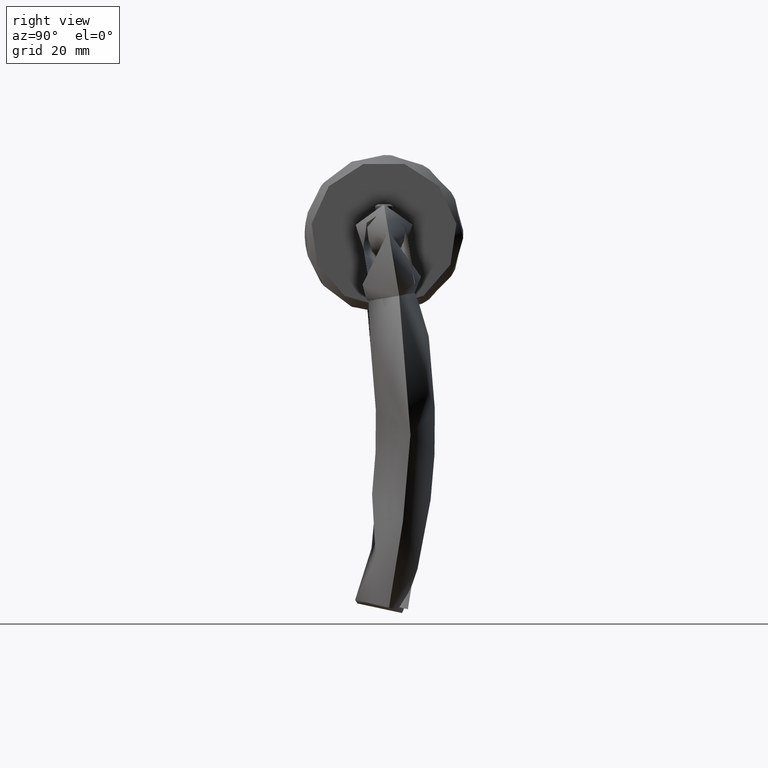
[diagram: clean part render]
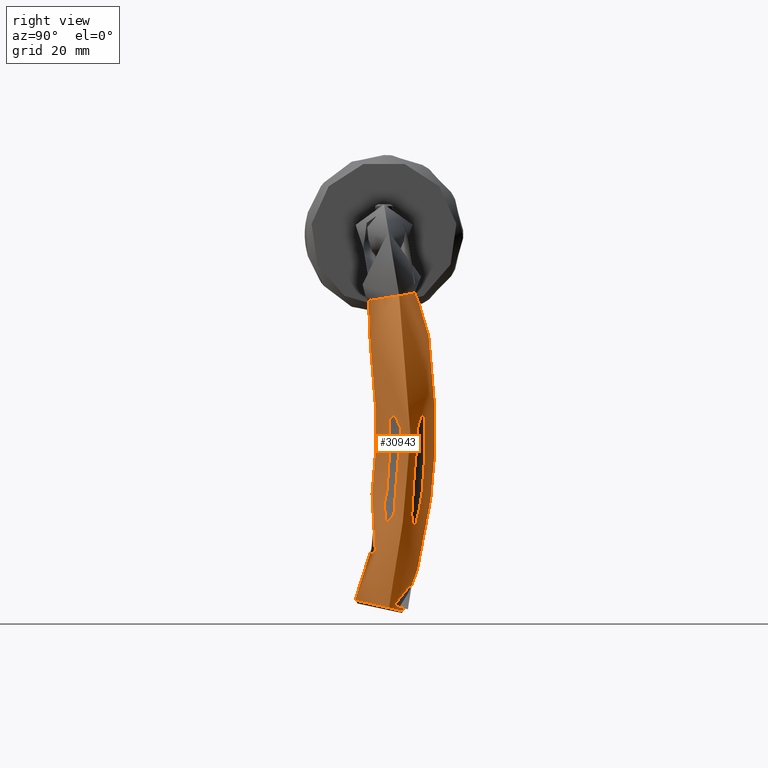
[diagram: same view with one face highlighted and labeled with its STEP entity id]
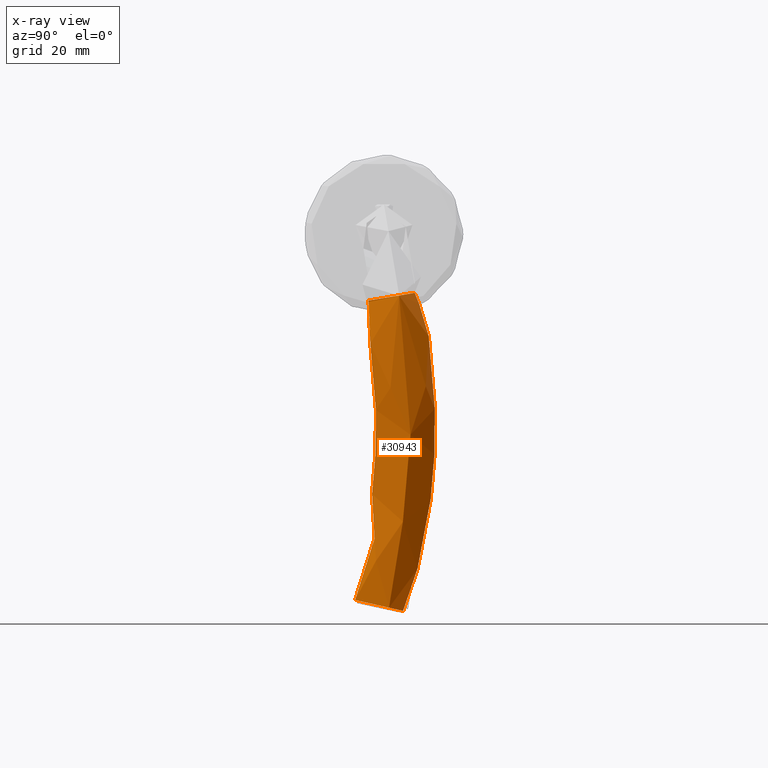
[diagram: x-ray of the same camera — body ghosted, the highlighted face saturated]
A machine part, right view. The second image highlights one B-rep face of the part: STEP entity #30943.
The next image is the same camera in x-ray: the body ghosted, the highlighted face saturated — about 0% of this face is hidden behind the body in this view.
In plain terms, the highlighted face is a freeform B-spline surface patch.
Its self-contained STEP definition (entity closure, byte-faithful):
#112 = CARTESIAN_POINT ( 'NONE',  ( -130.5698128588732600, -6.219134072154890400, -57.83003812462870000 ) ) ;
#356 = CARTESIAN_POINT ( 'NONE',  ( -134.0709871472998600, 9.137770209531227600, -62.04158802196808900 ) ) ;
#389 = CARTESIAN_POINT ( 'NONE',  ( -33.59849846205028700, -17.26691692299163300, -58.75889924407496800 ) ) ;
#606 = CARTESIAN_POINT ( 'NONE',  ( -131.4406529352596900, -2.397998580015246800, -74.68957661939141700 ) ) ;
#1087 = CARTESIAN_POINT ( 'NONE',  ( -130.6783135353684300, -5.742676379014278100, -72.99755096562266500 ) ) ;
#1347 = CARTESIAN_POINT ( 'NONE',  ( -131.7210926662486400, -1.167696739236369300, -74.92483773081221400 ) ) ;
#3389 = ORIENTED_EDGE ( 'NONE', *, *, #68314, .F. ) ;
#3896 = CARTESIAN_POINT ( 'NONE',  ( -137.8310191337228600, 20.31160826686162200, -71.64777984881506300 ) ) ;
#4395 = CARTESIAN_POINT ( 'NONE',  ( -132.6264968110462500, -1.635268044476800900, -55.53667909288991200 ) ) ;
#5397 = CARTESIAN_POINT ( 'NONE',  ( -131.4432045907656200, -2.387042729178907600, -55.73021477067189300 ) ) ;
#5640 = CARTESIAN_POINT ( 'NONE',  ( -133.9592029083965200, 8.647859512611381300, -60.86860236039323300 ) ) ;
#5888 = CARTESIAN_POINT ( 'NONE',  ( -129.9441295844369200, -8.964198660493879700, -62.04029178249705700 ) ) ;
#6141 = CARTESIAN_POINT ( 'NONE',  ( -133.4447006293623300, 6.392390675503305500, -57.82389818422168300 ) ) ;
#6374 = CARTESIAN_POINT ( 'NONE',  ( -131.1074172411365200, -3.860003825474706700, -74.13648017956003900 ) ) ;
#6525 = EDGE_CURVE ( 'NONE', #73832, #73832, #38724, .T. ) ;
#6645 = CARTESIAN_POINT ( 'NONE',  ( -29.99999999999999300, 5.000000000000000000, -74.86999999999996200 ) ) ;
#6856 = CARTESIAN_POINT ( 'NONE',  ( -130.1568799504262600, -8.030495165824065800, -70.38718249030225100 ) ) ;
#6887 = CARTESIAN_POINT ( 'NONE',  ( -26.79969969241005500, 24.06661661540167100, -71.64777984881489200 ) ) ;
#7110 = CARTESIAN_POINT ( 'NONE',  ( -133.0936802192554500, 4.852582642246686000, -73.69670337336197000 ) ) ;
#7355 = CARTESIAN_POINT ( 'NONE',  ( -130.2750669907808900, -7.511940250917935400, -71.18274858799097200 ) ) ;
#9922 = CARTESIAN_POINT ( 'NONE',  ( -93.42406875128061500, 5.713618309563606200, -55.53667909288979800 ) ) ;
#10163 = CARTESIAN_POINT ( 'NONE',  ( -36.55299309420989600, 25.13334967248736600, -71.64777984881493500 ) ) ;
#10421 = CARTESIAN_POINT ( 'NONE',  ( -133.3700000000000000, 1.500000000000011100, -74.86999999999994800 ) ) ;
#10923 = CARTESIAN_POINT ( 'NONE',  ( -131.3062850583373200, -2.987784052902631200, -55.91682200729134400 ) ) ;
#11179 = CARTESIAN_POINT ( 'NONE',  ( -131.5122230097188700, -2.084223522049397600, -55.65269996531897300 ) ) ;
#11430 = CARTESIAN_POINT ( 'NONE',  ( -130.3665709749104500, -7.110859524183768000, -58.72255394895242400 ) ) ;
#11684 = CARTESIAN_POINT ( 'NONE',  ( -132.1492702286618100, 0.7106904715384109200, -55.40350593326796500 ) ) ;
#11913 = CARTESIAN_POINT ( 'NONE',  ( -133.5943858555300800, 7.047988880663946400, -71.90997968926777200 ) ) ;
#12897 = CARTESIAN_POINT ( 'NONE',  ( -129.8288618905339400, -9.469791354680854300, -65.20334903401213500 ) ) ;
#13984 = CARTESIAN_POINT ( 'NONE',  ( -129.8288618905339100, -9.469791354680852500, -65.20334903401214900 ) ) ;
#14469 = CARTESIAN_POINT ( 'NONE',  ( -133.3700000000000000, 1.500000000000011100, -74.86999999999994800 ) ) ;
#15445 = CARTESIAN_POINT ( 'NONE',  ( -137.0875159447691100, 17.17634022238482000, -52.31445894170504800 ) ) ;
#16697 = CARTESIAN_POINT ( 'NONE',  ( -134.0680119379327100, 9.124310187662036500, -68.35796994714789300 ) ) ;
#16951 = CARTESIAN_POINT ( 'NONE',  ( -133.9895548344548200, 8.780885775080854200, -61.15754027165851200 ) ) ;
#17195 = CARTESIAN_POINT ( 'NONE',  ( -129.8850256747207700, -9.223471559580657300, -62.96827276319991300 ) ) ;
#17698 = CARTESIAN_POINT ( 'NONE',  ( -130.5170806847575900, -6.450498469067204300, -58.04530375048777600 ) ) ;
#18183 = CARTESIAN_POINT ( 'NONE',  ( -132.5697124218310400, 2.554735029878693700, -74.67356992518324400 ) ) ;
#18431 = CARTESIAN_POINT ( 'NONE',  ( -132.9679749022626500, 4.301345164689427800, -73.99885701111577400 ) ) ;
#18934 = CARTESIAN_POINT ( 'NONE',  ( -132.7059887951559500, 3.152413209858433900, -74.48726976777598500 ) ) ;
#20258 = CARTESIAN_POINT ( 'NONE',  ( -92.52561135342523400, -10.44469411929156300, -78.09222015118440700 ) ) ;
#21241 = CARTESIAN_POINT ( 'NONE',  ( -39.57457901058521800, 6.054523008624468800, -74.86999999999993300 ) ) ;
#21731 = CARTESIAN_POINT ( 'NONE',  ( -26.79969969241005500, 24.06661661540166400, -71.64777984881489200 ) ) ;
#22481 = CARTESIAN_POINT ( 'NONE',  ( -129.8288659896706700, -9.469798167612250200, -64.55634970103392300 ) ) ;
#22721 = CARTESIAN_POINT ( 'NONE',  ( -134.1827671704590200, 9.627519135535459700, -64.56380858974584700 ) ) ;
#22972 = CARTESIAN_POINT ( 'NONE',  ( -133.8946960257291900, 8.364542411228200100, -70.11554173751454800 ) ) ;
#23229 = CARTESIAN_POINT ( 'NONE',  ( -132.9712092730743800, 4.316055573401691000, -56.39775010264689600 ) ) ;
#23468 = CARTESIAN_POINT ( 'NONE',  ( -133.4436850050328800, 6.387273199756323000, -72.58756017474152600 ) ) ;
#23706 = CARTESIAN_POINT ( 'NONE',  ( -130.0220733150651400, -8.621973764991482300, -69.25307354093456500 ) ) ;
#24451 = CARTESIAN_POINT ( 'NONE',  ( -131.0422015858678200, -4.146130553948292900, -73.99771780735230200 ) ) ;
#26505 = CARTESIAN_POINT ( 'NONE',  ( -39.57457901058521800, 6.054523008624468800, -74.86999999999993300 ) ) ;
#26990 = CARTESIAN_POINT ( 'NONE',  ( -94.87174736077369600, 28.31430676102824900, -71.64777984881547500 ) ) ;
#27486 = CARTESIAN_POINT ( 'NONE',  ( -93.69867935709938000, 8.934806320868336400, -74.86999999999996200 ) ) ;
#28490 = CARTESIAN_POINT ( 'NONE',  ( -134.1267936110879800, 9.382003376199636000, -67.43244804959164200 ) ) ;
#28901 = EDGE_LOOP ( 'NONE', ( #74515 ) ) ;
#28976 = CARTESIAN_POINT ( 'NONE',  ( -133.6456218789485600, 7.273292456848916600, -58.72868011516219900 ) ) ;
#29231 = CARTESIAN_POINT ( 'NONE',  ( -130.2764066671464900, -7.506446727409834100, -59.21569095023158300 ) ) ;
#29470 = CARTESIAN_POINT ( 'NONE',  ( -131.8637778304078300, -0.5417548350614187500, -74.98794721354427400 ) ) ;
#29703 = CARTESIAN_POINT ( 'NONE',  ( -130.1203129283838400, -8.190936224721543400, -70.11308069512517700 ) ) ;
#29736 = CARTESIAN_POINT ( 'NONE',  ( -29.99999999999999300, 5.000000000000000000, -74.86999999999996200 ) ) ;
#30943 = ADVANCED_FACE ( 'NONE', ( #70362, #41610 ), #42290, .T. ) ;
#31502 = CARTESIAN_POINT ( 'NONE',  ( -42.59616492696047600, -13.02430365523842700, -78.09222015118497500 ) ) ;
#31742 = CARTESIAN_POINT ( 'NONE',  ( -93.69867935709938000, 8.934806320868336400, -74.86999999999996200 ) ) ;
#32474 = CARTESIAN_POINT ( 'NONE',  ( -59.66790423857745700, -10.50351425468295800, -78.09222015118477600 ) ) ;
#32981 = CARTESIAN_POINT ( 'NONE',  ( -36.77247685745562200, 21.92083931643617200, -52.31445894170489900 ) ) ;
#33978 = CARTESIAN_POINT ( 'NONE',  ( -130.6805515478976400, -5.733260472109371600, -57.42108813399381300 ) ) ;
#34219 = CARTESIAN_POINT ( 'NONE',  ( -133.9616159908460400, 8.657898764999560000, -69.55307633359174700 ) ) ;
#34469 = CARTESIAN_POINT ( 'NONE',  ( -133.8548510386318600, 8.190474471463417700, -60.02383370823655200 ) ) ;
#34734 = CARTESIAN_POINT ( 'NONE',  ( -133.8919644456731500, 8.353151121582461900, -60.30243075045055400 ) ) ;
#35711 = CARTESIAN_POINT ( 'NONE',  ( -130.3652867621460400, -7.116095213056491200, -71.67862476340975800 ) ) ;
#37520 = CARTESIAN_POINT ( 'NONE',  ( -128.1654776773233400, -20.44687631133841800, -58.75889924407477600 ) ) ;
#38255 = CARTESIAN_POINT ( 'NONE',  ( -33.59849846205028000, -17.26691692299163300, -58.75889924407496800 ) ) ;
#38724 =( BOUNDED_CURVE ( )  B_SPLINE_CURVE ( 3, ( #29736, #46054, #389, #41250, #51825, #6887, #6645 ),
 .UNSPECIFIED., .T., .F. ) 
 B_SPLINE_CURVE_WITH_KNOTS ( ( 4, 3, 4 ),
 ( 0.0000000000000000000, 0.5000000000000000000, 1.000000000000000000 ),
 .UNSPECIFIED. ) 
 CURVE ( )  GEOMETRIC_REPRESENTATION_ITEM ( )  RATIONAL_B_SPLINE_CURVE ( ( 1.000000000000000000, 0.3333333333333333700, 0.3333333333333333700, 1.000000000000000000, 0.3333333333333333700, 0.3333333333333333700, 1.000000000000000000 ) ) 
 REPRESENTATION_ITEM ( '' )  );
#38749 = CARTESIAN_POINT ( 'NONE',  ( -29.99999999999999300, 5.000000000000000000, -74.86999999999996200 ) ) ;
#38819 = VERTEX_POINT ( 'NONE', #13984 ) ;
#39504 = CARTESIAN_POINT ( 'NONE',  ( -133.3340537028555300, 5.906592806140196200, -72.99298400972290300 ) ) ;
#39753 = CARTESIAN_POINT ( 'NONE',  ( -131.2384101347342900, -3.285591277753887200, -56.02612459049773700 ) ) ;
#40002 = CARTESIAN_POINT ( 'NONE',  ( -133.7334012602301800, 7.657444559285009300, -71.17336995887161800 ) ) ;
#40254 = CARTESIAN_POINT ( 'NONE',  ( -130.0527902524225400, -8.487505251930956600, -60.86202387231198000 ) ) ;
#40489 = CARTESIAN_POINT ( 'NONE',  ( -134.1825756984858600, 9.626590060968380800, -65.85764132344495200 ) ) ;
#40732 = CARTESIAN_POINT ( 'NONE',  ( -129.8288577913971800, -9.469784541749458400, -65.85034836699034600 ) ) ;
#41221 = CARTESIAN_POINT ( 'NONE',  ( -131.6500001148793000, -1.479578454037832300, -74.87724895204125600 ) ) ;
#41250 = CARTESIAN_POINT ( 'NONE',  ( -30.39819815446035600, 1.799699692410031700, -55.53667909288995500 ) ) ;
#41610 = FACE_OUTER_BOUND ( 'NONE', #28901, .T. ) ;
#41716 = CARTESIAN_POINT ( 'NONE',  ( -131.3050003853631400, -2.993139240332127300, -74.50450371803808000 ) ) ;
#42290 =( BOUNDED_SURFACE ( )  B_SPLINE_SURFACE ( 3, 3, ( 
 ( #49315, #26505, #66623, #31742, #48825, #14469 ),
 ( #66870, #31502, #32474, #20258, #72666, #60351 ),
 ( #38255, #71676, #42787, #71917, #60114, #37520 ),
 ( #49802, #44765, #55814, #9922, #61345, #4395 ),
 ( #56567, #32981, #73906, #62089, #50044, #15445 ),
 ( #21731, #10163, #44017, #26990, #55574, #3896 ),
 ( #38749, #21241, #73657, #27486, #50800, #10421 ) ),
 .UNSPECIFIED., .T., .F., .F. ) 
 B_SPLINE_SURFACE_WITH_KNOTS ( ( 4, 3, 4 ),
 ( 4, 1, 1, 4 ),
 ( 0.0000000000000000000, 0.5000000000000000000, 1.000000000000000000 ),
 ( 0.0000000000000000000, 0.2795415856831526800, 0.5604373090770911100, 1.000000000000000000 ),
 .UNSPECIFIED. ) 
 GEOMETRIC_REPRESENTATION_ITEM ( )  RATIONAL_B_SPLINE_SURFACE ( (
 ( 1.000000000000000000, 1.000000000000000000, 1.000000000000000200, 1.000000000000000000, 1.000000000000000000, 1.000000000000000000),
 ( 0.3333333333333333700, 0.3333333333333333700, 0.3333333333333333700, 0.3333333333333333700, 0.3333333333333334300, 0.3333333333333333700),
 ( 0.3333333333333333700, 0.3333333333333333700, 0.3333333333333333700, 0.3333333333333333700, 0.3333333333333334300, 0.3333333333333333700),
 ( 1.000000000000000000, 1.000000000000000000, 1.000000000000000200, 1.000000000000000000, 1.000000000000000000, 1.000000000000000000),
 ( 0.3333333333333333700, 0.3333333333333333700, 0.3333333333333333700, 0.3333333333333333700, 0.3333333333333334300, 0.3333333333333333700),
 ( 0.3333333333333333700, 0.3333333333333333700, 0.3333333333333333700, 0.3333333333333333700, 0.3333333333333334300, 0.3333333333333333700),
 ( 1.000000000000000000, 1.000000000000000000, 1.000000000000000200, 1.000000000000000000, 1.000000000000000000, 1.000000000000000000) ) ) 
 REPRESENTATION_ITEM ( '' )  SURFACE ( )  );
#42787 = CARTESIAN_POINT ( 'NONE',  ( -59.69268226319335500, -13.73371667743426300, -58.75889924407468400 ) ) ;
#44017 = CARTESIAN_POINT ( 'NONE',  ( -58.14881881236070200, 28.25670089232078700, -71.64777984881509100 ) ) ;
#44765 = CARTESIAN_POINT ( 'NONE',  ( -39.88341996943824300, 2.848117676803886500, -55.53667909288996200 ) ) ;
#45264 = CARTESIAN_POINT ( 'NONE',  ( -129.8288618905339400, -9.469791354680854300, -65.20334903401213500 ) ) ;
#45527 = CARTESIAN_POINT ( 'NONE',  ( -132.2912538831100200, 1.333563116766345500, -55.46741343000866200 ) ) ;
#46021 = CARTESIAN_POINT ( 'NONE',  ( -130.1199068423259700, -8.193054405716424100, -60.29725110254656800 ) ) ;
#46054 = CARTESIAN_POINT ( 'NONE',  ( -33.20030030758992000, -14.06661661540167400, -78.09222015118498900 ) ) ;
#46271 = CARTESIAN_POINT ( 'NONE',  ( -133.7761350377227000, 7.844786811438067000, -70.91395699291864200 ) ) ;
#47008 = CARTESIAN_POINT ( 'NONE',  ( -130.9161307731909300, -4.699257285749051300, -73.69425074901354800 ) ) ;
#47260 = CARTESIAN_POINT ( 'NONE',  ( -129.9401216006886800, -8.981550654974533600, -68.36288046457959000 ) ) ;
#47314 = B_SPLINE_CURVE_WITH_KNOTS ( 'NONE', 3,
 ( #45264, #22481, #69107, #17195, #69346, #5888, #63085, #40254, #46021, #74164, #29231, #11430, #17698, #112, #33978, #62593, #74413, #51795, #39753, #10923, #5397, #11179, #52038, #57803, #11684, #45527, #68856, #63593, #51047, #57557, #23229, #63346, #51543, #6141, #28976, #51297, #34469, #34734, #5640, #16951, #356, #56815, #57064, #22721, #40489, #62841, #28490, #68607, #16697, #57311, #34219, #22972, #46271, #40002, #73903, #11913, #23468, #39504, #58783, #7110, #18431, #58533, #18934, #18183, #64815, #64323, #63831, #53026, #29470, #1347, #41221, #606, #41716, #6374, #24451, #47008, #52534, #1087, #64072, #35711, #7355, #6856, #29703, #69845, #23706, #47260, #64568, #70093, #40732, #12897 ),
 .UNSPECIFIED., .T., .F.,
 ( 4, 2, 2, 1, 2, 2, 2, 2, 2, 2, 2, 2, 2, 2, 2, 2, 2, 2, 2, 2, 2, 2, 2, 2, 2, 2, 2, 2, 2, 2, 2, 1, 2, 2, 2, 2, 2, 2, 2, 2, 2, 2, 2, 2, 2, 4 ),
 ( 0.0000000000000000000, 0.001927968745327921700, 0.002891953117991862000, 0.003855937490655822600, 0.004819921863319782400, 0.005783906235983743100, 0.007711874981311657400, 0.008675859353975622400, 0.009639843726639585700, 0.01156781247196752600, 0.01253179684463150100, 0.01349578121729547700, 0.01542374996262342900, 0.01735171870795138000, 0.01831570308061536400, 0.01927968745327935200, 0.02120765619860731300, 0.02313562494393527800, 0.02506359368926323900, 0.02602757806192721600, 0.02699156243459119700, 0.02891953117991915800, 0.03084749992524712600, 0.03277546867057508400, 0.03373945304323904700, 0.03470343741590301000, 0.03663140616123088800, 0.03759539053389481700, 0.03855937490655875900, 0.04048734365188665800, 0.04145132802455059300, 0.04241531239721452900, 0.04337929676987845700, 0.04434328114254239300, 0.04627124988787025700, 0.04723523426053420600, 0.04819921863319814900, 0.05012718737852602000, 0.05109117175118996900, 0.05205515612385392500, 0.05398312486918183800, 0.05591109361450974400, 0.05687507798717370000, 0.05783906235983765600, 0.05976703110516556200, 0.06169499985049346800 ),
 .UNSPECIFIED. ) ;
#48825 = CARTESIAN_POINT ( 'NONE',  ( -118.3789552518631200, 3.689872914725602200, -74.86999999999993300 ) ) ;
#49315 = CARTESIAN_POINT ( 'NONE',  ( -29.99999999999999300, 5.000000000000000000, -74.86999999999996200 ) ) ;
#49802 = CARTESIAN_POINT ( 'NONE',  ( -30.39819815446035600, 1.799699692410031700, -55.53667909288995500 ) ) ;
#50044 = CARTESIAN_POINT ( 'NONE',  ( -122.0964711966322400, 19.36621313711040300, -52.31445894170502700 ) ) ;
#50800 = CARTESIAN_POINT ( 'NONE',  ( -118.3789552518631200, 3.689872914725602200, -74.86999999999993300 ) ) ;
#51047 = CARTESIAN_POINT ( 'NONE',  ( -132.7052949516815100, 3.149755327642399700, -55.91855513515702100 ) ) ;
#51297 = CARTESIAN_POINT ( 'NONE',  ( -133.7356697933662700, 7.668047936975159300, -59.22185518748999300 ) ) ;
#51543 = CARTESIAN_POINT ( 'NONE',  ( -133.3326342734361600, 5.901012082016515900, -57.40986106143000700 ) ) ;
#51795 = CARTESIAN_POINT ( 'NONE',  ( -131.0409665746429400, -4.151895956083545300, -56.39428350438973300 ) ) ;
#51825 = CARTESIAN_POINT ( 'NONE',  ( -27.19789784687041800, 20.86631630781170100, -52.31445894170492000 ) ) ;
#52038 = CARTESIAN_POINT ( 'NONE',  ( -131.7209126581158200, -1.168606781573641400, -55.46632066405420100 ) ) ;
#52534 = CARTESIAN_POINT ( 'NONE',  ( -130.8551632515732600, -4.966750230449608900, -73.52955911648399500 ) ) ;
#53026 = CARTESIAN_POINT ( 'NONE',  ( -131.9349348276882400, -0.2296055819344176900, -75.00343800180368700 ) ) ;
#55574 = CARTESIAN_POINT ( 'NONE',  ( -122.5632352742072400, 22.55377416389070800, -71.64777984881506300 ) ) ;
#55814 = CARTESIAN_POINT ( 'NONE',  ( -58.98362111950289200, 5.647451411010501400, -55.53667909288991200 ) ) ;
#56567 = CARTESIAN_POINT ( 'NONE',  ( -27.19789784687042200, 20.86631630781170400, -52.31445894170492000 ) ) ;
#56815 = CARTESIAN_POINT ( 'NONE',  ( -134.1126339287166300, 9.320266395682207200, -62.65595747126276600 ) ) ;
#57064 = CARTESIAN_POINT ( 'NONE',  ( -134.1687538873116200, 9.566148120893178200, -63.92332233290123600 ) ) ;
#57311 = CARTESIAN_POINT ( 'NONE',  ( -134.0436563318654900, 9.017541253789650200, -68.66371357090817200 ) ) ;
#57557 = CARTESIAN_POINT ( 'NONE',  ( -132.7732649350756700, 3.447881038261835700, -56.02810986500433200 ) ) ;
#57803 = CARTESIAN_POINT ( 'NONE',  ( -131.8622021410150800, -0.5487194546815914500, -55.40317380663059100 ) ) ;
#58533 = CARTESIAN_POINT ( 'NONE',  ( -132.8396055758304600, 3.738405937506567200, -74.27181861653289700 ) ) ;
#58783 = CARTESIAN_POINT ( 'NONE',  ( -133.1555304549449900, 5.123795646921478500, -73.52998163895939900 ) ) ;
#60114 = CARTESIAN_POINT ( 'NONE',  ( -113.4511720405651000, -18.30929637891633600, -58.75889924407477600 ) ) ;
#60351 = CARTESIAN_POINT ( 'NONE',  ( -128.9089808662771200, -17.31160826686161500, -78.09222015118481900 ) ) ;
#61345 = CARTESIAN_POINT ( 'NONE',  ( -117.7738216185987300, 0.5284583790970377400, -55.53667909288988400 ) ) ;
#62089 = CARTESIAN_POINT ( 'NONE',  ( -94.53751006228809200, 25.09948315004197600, -52.31445894170539600 ) ) ;
#62593 = CARTESIAN_POINT ( 'NONE',  ( -130.7383680727813800, -5.479584847947236000, -57.22835153656090100 ) ) ;
#62841 = CARTESIAN_POINT ( 'NONE',  ( -134.1683808563077200, 9.564334610133247600, -66.49377352719837100 ) ) ;
#63085 = CARTESIAN_POINT ( 'NONE',  ( -129.9921063224973900, -8.753730077515951900, -61.43905275557295200 ) ) ;
#63346 = CARTESIAN_POINT ( 'NONE',  ( -133.0962367282933200, 4.864370429876883500, -56.69908462402614200 ) ) ;
#63593 = CARTESIAN_POINT ( 'NONE',  ( -132.5687350954589500, 2.550761125859951900, -55.73206843101682000 ) ) ;
#63831 = CARTESIAN_POINT ( 'NONE',  ( -132.1478664035153900, 0.7044496495298565600, -75.00314122693679100 ) ) ;
#64072 = CARTESIAN_POINT ( 'NONE',  ( -130.5684251436663000, -6.224815691181290400, -72.59267092387266000 ) ) ;
#64323 = CARTESIAN_POINT ( 'NONE',  ( -132.2891068945657800, 1.323985860898493300, -74.94103028964033800 ) ) ;
#64568 = CARTESIAN_POINT ( 'NONE',  ( -129.8989613985855300, -9.162152603583635400, -67.75239143565430300 ) ) ;
#64815 = CARTESIAN_POINT ( 'NONE',  ( -132.4998694841208600, 2.248408612093564700, -74.75244938540738800 ) ) ;
#66623 = CARTESIAN_POINT ( 'NONE',  ( -58.90836152546907600, 8.876593318818910600, -74.86999999999999000 ) ) ;
#66870 = CARTESIAN_POINT ( 'NONE',  ( -33.20030030758991300, -14.06661661540167400, -78.09222015118497500 ) ) ;
#68314 = EDGE_CURVE ( 'NONE', #38819, #38819, #47314, .T. ) ;
#68607 = CARTESIAN_POINT ( 'NONE',  ( -134.1095236428337500, 9.306291668350665300, -67.74273307124082100 ) ) ;
#68856 = CARTESIAN_POINT ( 'NONE',  ( -132.4998270259380000, 2.248497126618127100, -55.65442686813328500 ) ) ;
#69107 = CARTESIAN_POINT ( 'NONE',  ( -129.8429616221982000, -9.407982284805262600, -63.91673400183058400 ) ) ;
#69346 = CARTESIAN_POINT ( 'NONE',  ( -129.9026110374819600, -9.146331230699550100, -62.65383472663568700 ) ) ;
#69845 = CARTESIAN_POINT ( 'NONE',  ( -130.0529539978419100, -8.486480761938183900, -69.54668001188235800 ) ) ;
#70093 = CARTESIAN_POINT ( 'NONE',  ( -129.8432498912765100, -9.406618674766095400, -66.49778971459254300 ) ) ;
#70174 = CARTESIAN_POINT ( 'NONE',  ( -29.99999999999999300, 5.000000000000000000, -74.86999999999996200 ) ) ;
#70362 = FACE_OUTER_BOUND ( 'NONE', #73083, .T. ) ;
#71676 = CARTESIAN_POINT ( 'NONE',  ( -42.99436308142085700, -16.22460396282839300, -58.75889924407494600 ) ) ;
#71917 = CARTESIAN_POINT ( 'NONE',  ( -92.31062744027315100, -13.67224653091476900, -58.75889924407428600 ) ) ;
#72666 = CARTESIAN_POINT ( 'NONE',  ( -114.1946752295189500, -15.17402833443952700, -78.09222015118477600 ) ) ;
#73083 = EDGE_LOOP ( 'NONE', ( #3389 ) ) ;
#73657 = CARTESIAN_POINT ( 'NONE',  ( -58.90836152546907600, 8.876593318818910600, -74.86999999999999000 ) ) ;
#73832 = VERTEX_POINT ( 'NONE', #70174 ) ;
#73903 = CARTESIAN_POINT ( 'NONE',  ( -133.6423120580448100, 7.258104725671488600, -71.67246260932324700 ) ) ;
#73906 = CARTESIAN_POINT ( 'NONE',  ( -58.27455997581243700, 25.02861949945527800, -52.31445894170509100 ) ) ;
#74164 = CARTESIAN_POINT ( 'NONE',  ( -130.1568774822133000, -8.030855991505022800, -60.01970857402005100 ) ) ;
#74413 = CARTESIAN_POINT ( 'NONE',  ( -130.9159644616183000, -4.700360650380042100, -56.69490450074784600 ) ) ;
#74515 = ORIENTED_EDGE ( 'NONE', *, *, #6525, .T. ) ;